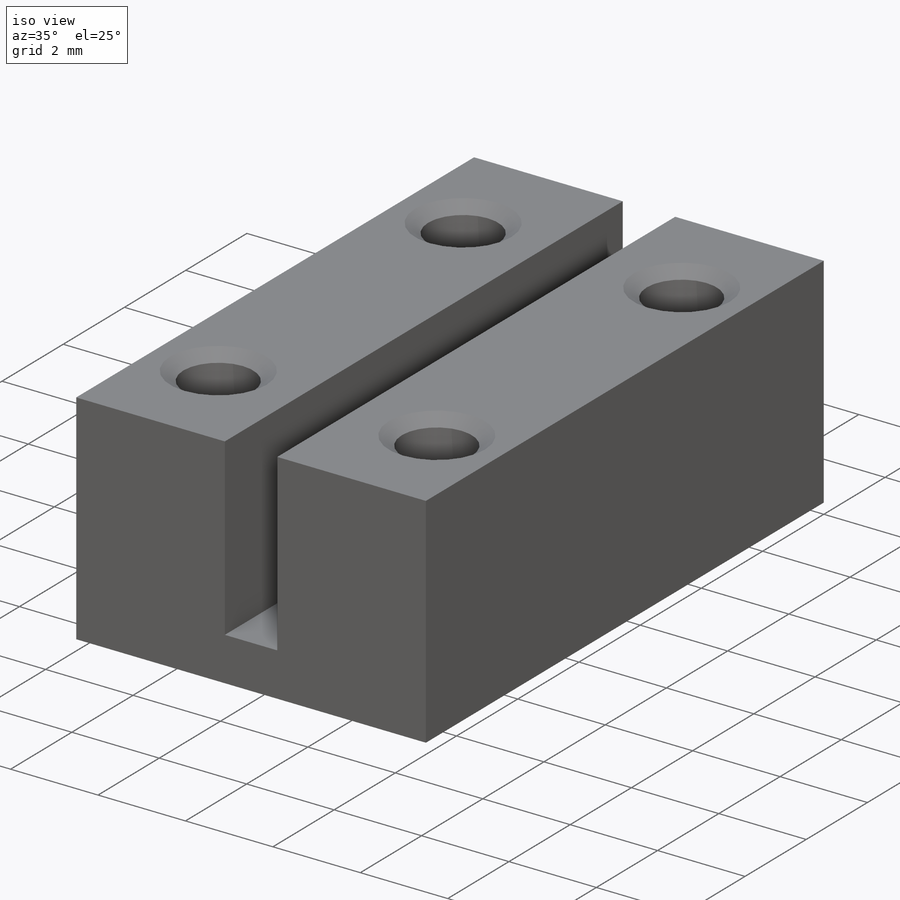
[diagram: iso view]
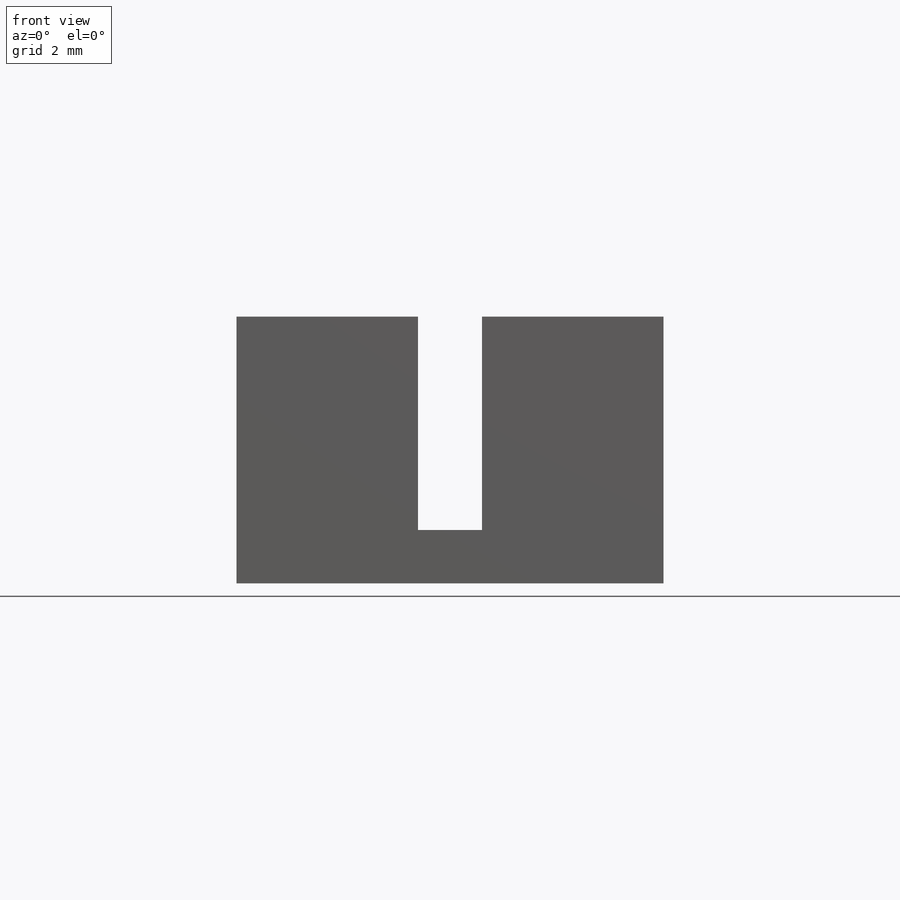
[diagram: front view]
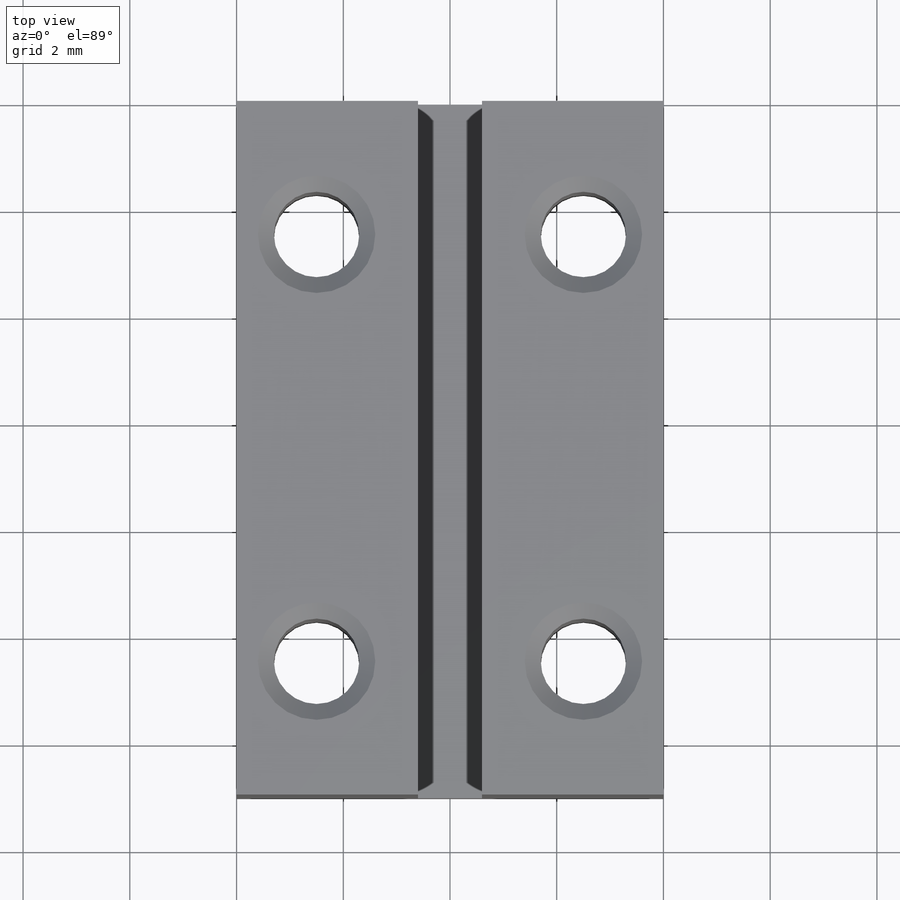
[diagram: top view]
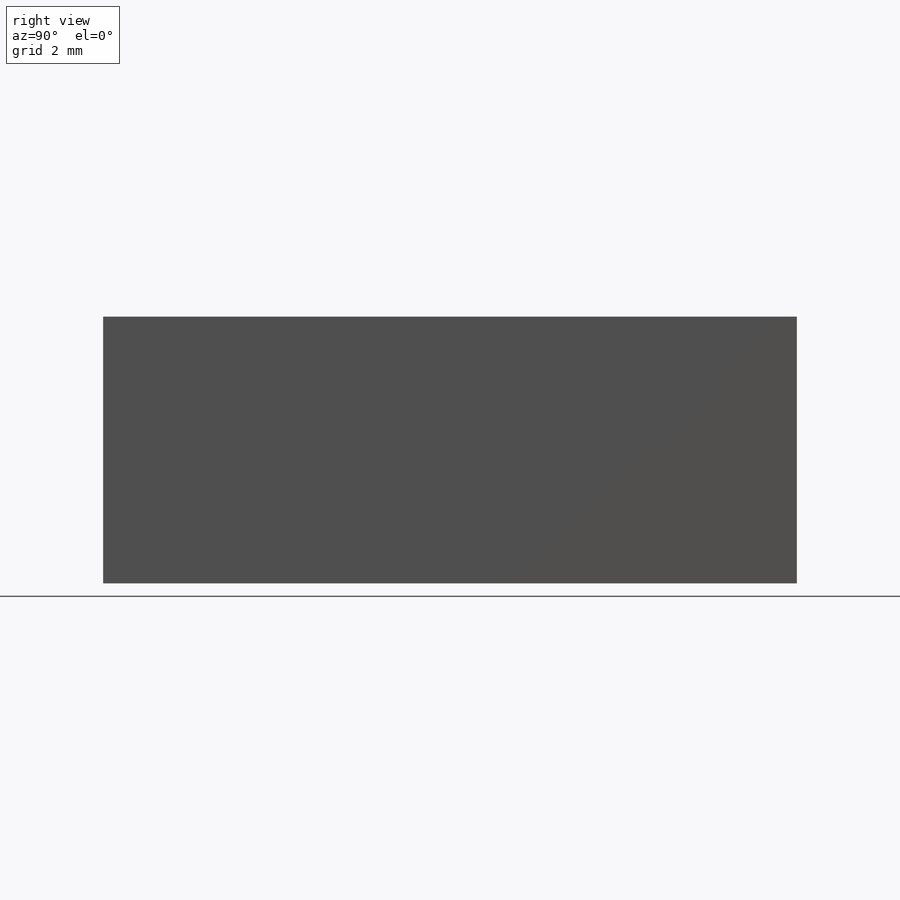
[diagram: right view]
SOLIDWORKS PART (.sldprt)
format: sldprt  version: not decoded by parser v0  size: 206,336 bytes
history: native  units: mm
features: thread x4, plane x3, sketch x3, material x1, extrude x1, hole x1 (+13 scaffold rows collapsed)
feature tree (26):
  scaffold x13  (default folders/planes/origin — collapsed)
  material  "Материал <не указан>"
  plane  "Спереди"
  plane  "Сверху"
  plane  "Справа"
  sketch  "Эскиз1"  dims[D1=8.0mm D2=1.2mm D3=4.0mm D4=5.0mm]
  extrude  "Бобышка-Вытянуть1"  Depth=13mm
  hole  "Отверстие обработанное метчиком M2x0.41"  [1 undecoded]
  sketch  "Эскиз3"  dims[D1=2.5mm D2=5.0mm D3=8.0mm D4=2.5mm]
  sketch  "Эскиз2"  dims[hole-wizard template sketch: 47 standard entries collapsed; hole parameters kept: c15.Глубина проходного сверла=5.0mm c15.Диаметр передней зенковки=2.2mm c15.D4=~3.666174mm c15.Угол передней зенковки=90.0deg c15.Диаметр задней зенковки=2.2mm c15.D6=~9.919017mm c15.Угол задней зенковки=110.0deg]
  thread  "Отверстие резьбы1"  Diameter=2mm  [1 undecoded]
  thread  "Отверстие резьбы2"  Diameter=2mm  [1 undecoded]
  thread  "Отверстие резьбы3"  Diameter=2mm  [1 undecoded]
  thread  "Отверстие резьбы4"  Diameter=2mm  [1 undecoded]
decode coverage: 8 of 9 modeling features carry decoded parameters
note: ~ marks probable driven/reference dimensions
note: 5 parameter values undecoded
note: suppression state not decoded; provenance and decode notes live in map.json
